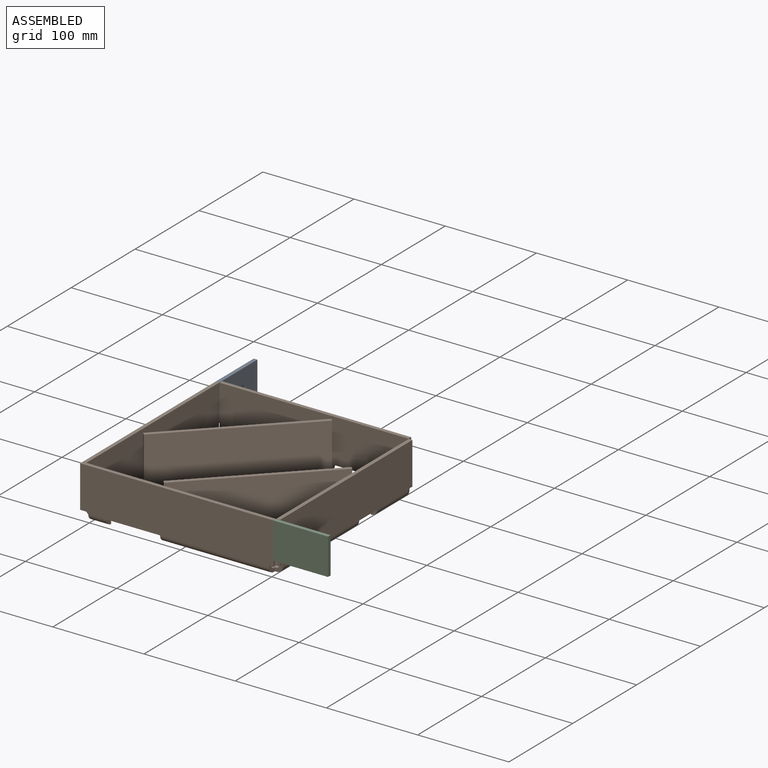
[diagram: assembled view]
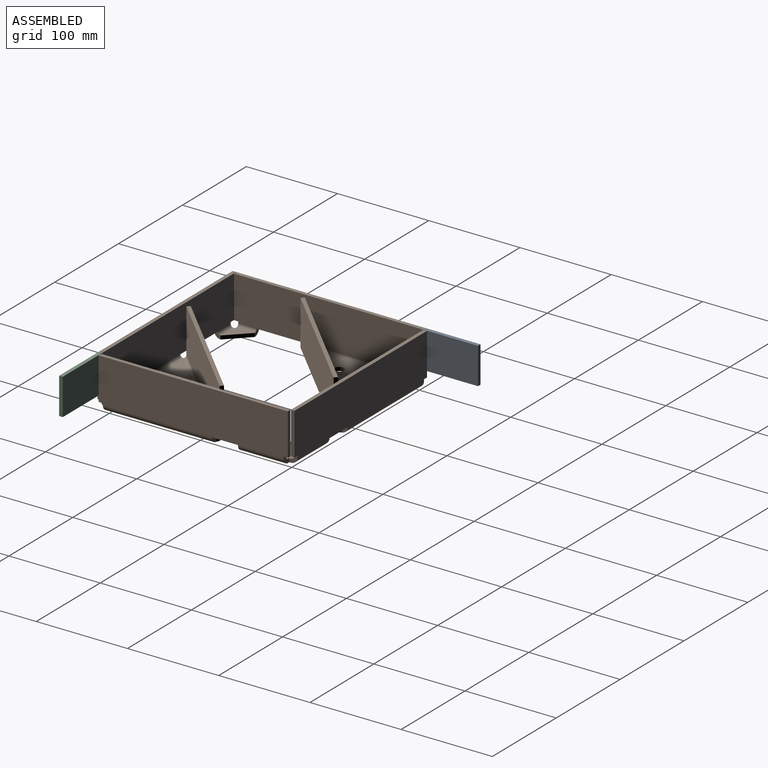
[diagram: assembled view, second angle]
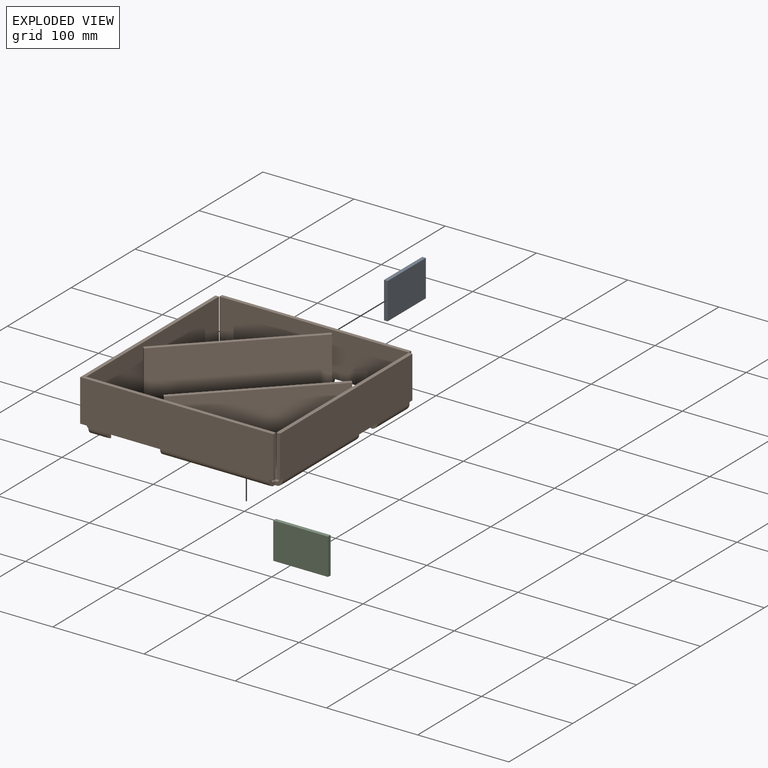
[diagram: exploded view]
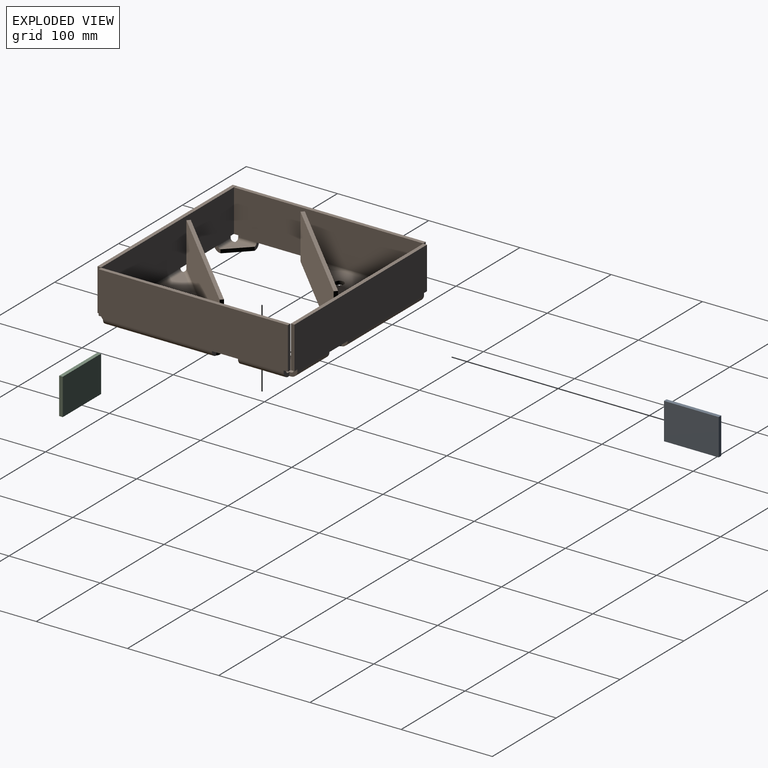
[diagram: exploded view, second angle]
ASSEMBLY  parts=3 mates=2
PART A: 6 faces, bbox 60x4x40 mm
  f0: plane 60x4mm, normal (0,0,-1), area 240mm2, adj f1,f3,f4,f5
  f1: plane 40x4mm, normal (1,0,0), area 160mm2, adj f0,f2,f4,f5
  f2: plane 60x4mm, normal (0,0,1), area 240mm2, adj f1,f3,f4,f5
  f3: plane 40x4mm, normal (-1,0,0), area 160mm2, adj f0,f2,f4,f5
  f4: plane 60x40mm, normal (0,-1,0), area 2400mm2, adj f0,f1,f2,f3
  f5: plane 60x40mm, normal (0,1,0), area 2400mm2, adj f0,f1,f2,f3
PART B: 112 faces, bbox 216x216x55 mm
  f0: plane 28.61x4mm, normal (0,0,-1), area 114.4mm2, adj f1,f2,f104,f108
  f1: plane 207.4x48mm, normal (0,-1,0), area 9937.9mm2, adj f0,f3,f4,f5,f6,f7,f8,f9
  f2: plane 207.4x48mm, normal (0,1,0), area 9937.9mm2, adj f0,f3,f4,f5,f6,f7,f8,f9
  f3: plane 46.12x4mm, normal (-1,0,0), area 184.5mm2, adj f1,f2,f5,f8
  f4: plane 46.12x4mm, normal (1,0,0), area 184.5mm2, adj f1,f2,f5,f6
  f5: plane 207.4x4mm, normal (0,0,1), area 829.6mm2, adj f1,f2,f3,f4
  f6: plane 4.59x4mm, normal (0,0,-1), area 18.3mm2, adj f1,f2,f4,f7
  f7: plane 4x1.89mm, normal (1,0,0), area 7.5mm2, adj f1,f2,f6,f109
  f8: plane 4.59x4mm, normal (0,0,-1), area 18.3mm2, adj f1,f2,f3,f9
  f9: plane 4x1.89mm, normal (-1,0,0), area 7.5mm2, adj f1,f2,f8,f105
  f10: plane 52x52mm, normal (0,0,1), area 1348.4mm2, adj f12,f13,f14,f85,f111
  f11: plane 52x52mm, normal (0,0,-1), area 1348.4mm2, adj f12,f13,f14,f84,f110
  f12: plane 52x52mm, normal (-0.71,-0.71,0), area 294.2mm2, adj f10,f11,f82,f108
  f13: plane 4x1.89mm, normal (0,1,0), area 7.5mm2, adj f10,f11,f14,f83
  f14: plane 4x1.89mm, normal (1,0,0), area 7.5mm2, adj f10,f11,f13,f109
  f15: plane 121.39x121.39mm, normal (0,0,1), area 7207.1mm2, adj f17,f18,f19,f20,f63,f103,f107
  f16: plane 121.39x121.39mm, normal (0,0,-1), area 7207.1mm2, adj f17,f18,f19,f20,f62,f102,f106
  f17: cylinder r=5mm len=10mm, axis (0,0,1), area 125.7mm2, adj f15,f16
  f18: cylinder r=5mm len=10mm, axis (0,0,1), area 125.7mm2, adj f15,f16
  f19: plane 4x1.89mm, normal (-1,0,0), area 7.5mm2, adj f15,f16,f20,f105
  f20: plane 4x1.89mm, normal (0,1,0), area 7.5mm2, adj f15,f16,f19,f61
  f21: plane 121.39x121.39mm, normal (0,0,1), area 7207.1mm2, adj f23,f24,f25,f26,f45,f81,f94
  f22: plane 121.39x121.39mm, normal (0,0,-1), area 7207.1mm2, adj f23,f24,f25,f26,f44,f80,f93
  f23: cylinder r=5mm len=10mm, axis (0,0,1), area 125.7mm2, adj f21,f22
  f24: cylinder r=5mm len=10mm, axis (0,0,1), area 125.7mm2, adj f21,f22
  f25: plane 4x1.89mm, normal (1,0,0), area 7.5mm2, adj f21,f22,f26,f43
  f26: plane 4x1.89mm, normal (0,-1,0), area 7.5mm2, adj f21,f22,f25,f79
  f27: plane 22x22mm, normal (0,0,1), area 238.4mm2, adj f29,f30,f31,f49,f67
  f28: plane 22x22mm, normal (0,0,-1), area 238.4mm2, adj f29,f30,f31,f48,f66
  f29: plane 22x22mm, normal (0.71,0.71,0), area 124.5mm2, adj f27,f28,f46,f64
  f30: plane 4x1.89mm, normal (0,-1,0), area 7.5mm2, adj f27,f28,f31,f65
  f31: plane 4x1.89mm, normal (-1,0,0), area 7.5mm2, adj f27,f28,f30,f47
  f32: plane 58.61x4mm, normal (0,0,-1), area 234.4mm2, adj f33,f36,f42,f46
  f33: plane 211.7x48mm, normal (0,-1,0), area 10136.2mm2, adj f32,f34,f35,f37,f38,f39,f40,f41
  f34: plane 46.12x4mm, normal (1,0,0), area 184.5mm2, adj f33,f36,f37,f41
  f35: plane 46.12x4mm, normal (-1,0,0), area 184.5mm2, adj f33,f36,f37,f39
  f36: plane 211.7x48mm, normal (0,1,0), area 10136.2mm2, adj f32,f34,f35,f37,f38,f39,f40,f41
  f37: plane 211.7x4mm, normal (0,0,1), area 846.8mm2, adj f33,f34,f35,f36
  f38: plane 4x1.89mm, normal (-1,0,0), area 7.5mm2, adj f33,f36,f39,f47
  f39: plane 8.89x4mm, normal (0,0,-1), area 35.5mm2, adj f33,f35,f36,f38
  f40: plane 4x1.89mm, normal (1,0,0), area 7.5mm2, adj f33,f36,f41,f43
  f41: plane 4.59x4mm, normal (0,0,-1), area 18.3mm2, adj f33,f34,f36,f40
  f42: plane 7x7mm, normal (-1,0,0), area 31.4mm2, adj f32,f44,f45,f92
  f43: plane 7x7mm, normal (1,0,0), area 31.4mm2, adj f25,f40,f44,f45
  f44: cylinder r=7mm len=119.51mm, axis (-1,0,0), area 1314mm2, adj f22,f33,f42,f43
  f45: cylinder r=3mm len=119.51mm, axis (-1,0,0), area 563.2mm2, adj f21,f36,f42,f43
  f46: plane 7x7mm, normal (1,0,0), area 31.4mm2, adj f29,f32,f48,f49
  f47: plane 7x7mm, normal (-1,0,0), area 31.4mm2, adj f31,f38,f48,f49
  f48: cylinder r=7mm len=20.12mm, axis (-1,0,0), area 221.2mm2, adj f28,f33,f46,f47
  f49: cylinder r=3mm len=20.12mm, axis (-1,0,0), area 94.8mm2, adj f27,f36,f46,f47
  f50: plane 58.61x4mm, normal (0,0,-1), area 234.4mm2, adj f51,f52,f60,f64
  f51: plane 207.4x48mm, normal (1,0,0), area 9937.9mm2, adj f50,f53,f54,f55,f56,f57,f58,f59
  f52: plane 207.4x48mm, normal (-1,0,0), area 9937.9mm2, adj f50,f53,f54,f55,f56,f57,f58,f59
  f53: plane 46.12x4mm, normal (0,-1,0), area 184.5mm2, adj f51,f52,f55,f58
  f54: plane 46.12x4mm, normal (0,1,0), area 184.5mm2, adj f51,f52,f55,f56
  f55: plane 207.4x4mm, normal (0,0,1), area 829.6mm2, adj f51,f52,f53,f54
  f56: plane 4.59x4mm, normal (0,0,-1), area 18.3mm2, adj f51,f52,f54,f57
  f57: plane 4x1.89mm, normal (0,1,0), area 7.5mm2, adj f51,f52,f56,f61
  f58: plane 4.59x4mm, normal (0,0,-1), area 18.3mm2, adj f51,f52,f53,f59
  f59: plane 4x1.89mm, normal (0,-1,0), area 7.5mm2, adj f51,f52,f58,f65
  f60: plane 7x7mm, normal (0,-1,0), area 31.4mm2, adj f50,f62,f63,f100
  f61: plane 7x7mm, normal (0,1,0), area 31.4mm2, adj f20,f57,f62,f63
  f62: cylinder r=7mm len=119.51mm, axis (0,-1,0), area 1314mm2, adj f16,f52,f60,f61
  f63: cylinder r=3mm len=119.51mm, axis (0,-1,0), area 563.2mm2, adj f15,f51,f60,f61
  f64: plane 7x7mm, normal (0,1,0), area 31.4mm2, adj f29,f50,f66,f67
  f65: plane 7x7mm, normal (0,-1,0), area 31.4mm2, adj f30,f59,f66,f67
  f66: cylinder r=7mm len=20.12mm, axis (0,-1,0), area 221.2mm2, adj f28,f52,f64,f65
  f67: cylinder r=3mm len=20.12mm, axis (0,-1,0), area 94.8mm2, adj f27,f51,f64,f65
  f68: plane 28.61x4mm, normal (0,0,-1), area 114.4mm2, adj f69,f72,f78,f82
  f69: plane 207.4x48mm, normal (1,0,0), area 9937.9mm2, adj f68,f70,f71,f73,f74,f75,f76,f77
  f70: plane 46.12x4mm, normal (0,1,0), area 184.5mm2, adj f69,f72,f73,f77
  f71: plane 46.12x4mm, normal (0,-1,0), area 184.5mm2, adj f69,f72,f73,f75
  f72: plane 207.4x48mm, normal (-1,0,0), area 9937.9mm2, adj f68,f70,f71,f73,f74,f75,f76,f77
  f73: plane 207.4x4mm, normal (0,0,1), area 829.6mm2, adj f69,f70,f71,f72
  f74: plane 4x1.89mm, normal (0,-1,0), area 7.5mm2, adj f69,f72,f75,f79
  f75: plane 4.59x4mm, normal (0,0,-1), area 18.3mm2, adj f69,f71,f72,f74
  f76: plane 4x1.89mm, normal (0,1,0), area 7.5mm2, adj f69,f72,f77,f83
  f77: plane 4.59x4mm, normal (0,0,-1), area 18.3mm2, adj f69,f70,f72,f76
  f78: plane 7x7mm, normal (0,1,0), area 31.4mm2, adj f68,f80,f81,f91
  f79: plane 7x7mm, normal (0,-1,0), area 31.4mm2, adj f26,f74,f80,f81
  f80: cylinder r=7mm len=119.51mm, axis (0,-1,0), area 1314mm2, adj f22,f69,f78,f79
  f81: cylinder r=3mm len=119.51mm, axis (0,-1,0), area 563.2mm2, adj f21,f72,f78,f79
  f82: plane 7x7mm, normal (0,-1,0), area 31.4mm2, adj f12,f68,f84,f85
  f83: plane 7x7mm, normal (0,1,0), area 31.4mm2, adj f13,f76,f84,f85
  f84: cylinder r=7mm len=50.12mm, axis (0,-1,0), area 551mm2, adj f11,f69,f82,f83
  f85: cylinder r=3mm len=50.12mm, axis (0,-1,0), area 236.2mm2, adj f10,f72,f82,f83
  f86: plane 124.22x124.22mm, normal (0,0,1), area 686.7mm2, adj f87,f88,f89,f90
  f87: plane 48x2.83mm, normal (0.71,0.71,0), area 192mm2, adj f86,f89,f90,f91
  f88: plane 48x2.83mm, normal (-0.71,-0.71,0), area 192mm2, adj f86,f89,f90,f92
  f89: plane 121.39x121.39mm, normal (-0.71,0.71,0), area 8240.2mm2, adj f86,f87,f88,f93
  f90: plane 121.39x121.39mm, normal (0.71,-0.71,0), area 8240.2mm2, adj f86,f87,f88,f94
  f91: plane 7x4.95mm, normal (0.71,0.71,0), area 31.4mm2, adj f78,f87,f93,f94
  f92: plane 7x4.95mm, normal (-0.71,-0.71,0), area 31.4mm2, adj f42,f88,f93,f94
  f93: cylinder r=7mm len=126.34mm, axis (0.71,0.71,0), area 1887.6mm2, adj f22,f89,f91,f92
  f94: cylinder r=3mm len=123.51mm, axis (0.71,0.71,0), area 809mm2, adj f21,f90,f91,f92
  f95: plane 124.22x124.22mm, normal (0,0,1), area 686.7mm2, adj f96,f97,f98,f99
  f96: plane 48x2.83mm, normal (-0.71,-0.71,0), area 192mm2, adj f95,f98,f99,f100
  f97: plane 48x2.83mm, normal (0.71,0.71,0), area 192mm2, adj f95,f98,f99,f101
  f98: plane 121.39x121.39mm, normal (0.71,-0.71,0), area 8240.2mm2, adj f95,f96,f97,f102
  f99: plane 121.39x121.39mm, normal (-0.71,0.71,0), area 8240.2mm2, adj f95,f96,f97,f103
  f100: plane 7x4.95mm, normal (-0.71,-0.71,0), area 31.4mm2, adj f60,f96,f102,f103
  f101: plane 7x4.95mm, normal (0.71,0.71,0), area 31.4mm2, adj f97,f102,f103,f104
  f102: cylinder r=7mm len=126.34mm, axis (-0.71,-0.71,0), area 1887.6mm2, adj f16,f98,f100,f101
  f103: cylinder r=3mm len=123.51mm, axis (-0.71,-0.71,0), area 809mm2, adj f15,f99,f100,f101
  f104: plane 7x7mm, normal (1,0,0), area 31.4mm2, adj f0,f101,f106,f107
  f105: plane 7x7mm, normal (-1,0,0), area 31.4mm2, adj f9,f19,f106,f107
  f106: cylinder r=7mm len=119.51mm, axis (-1,0,0), area 1314mm2, adj f2,f16,f104,f105
  f107: cylinder r=3mm len=119.51mm, axis (-1,0,0), area 563.2mm2, adj f1,f15,f104,f105
  f108: plane 7x7mm, normal (-1,0,0), area 31.4mm2, adj f0,f12,f110,f111
  f109: plane 7x7mm, normal (1,0,0), area 31.4mm2, adj f7,f14,f110,f111
  f110: cylinder r=7mm len=50.12mm, axis (-1,0,0), area 551mm2, adj f2,f11,f108,f109
  f111: cylinder r=3mm len=50.12mm, axis (-1,0,0), area 236.2mm2, adj f1,f10,f108,f109
PART C: same geometry as A
PLACE A rot(axis=(0,0,-1),90deg) t=(-100.47,133.8,4.6)mm
PLACE B t=(3.53,0.1,-30.4)mm
PLACE C t=(137.23,-103.9,4.6)mm
MATE fastened C.f3 <-> B.f34  axis (-1,0,0) through (107.23,-107.9,24.6)mm
MATE fastened A.f1 <-> B.f54  axis (0,-1,0) through (-100.47,103.8,24.6)mm
